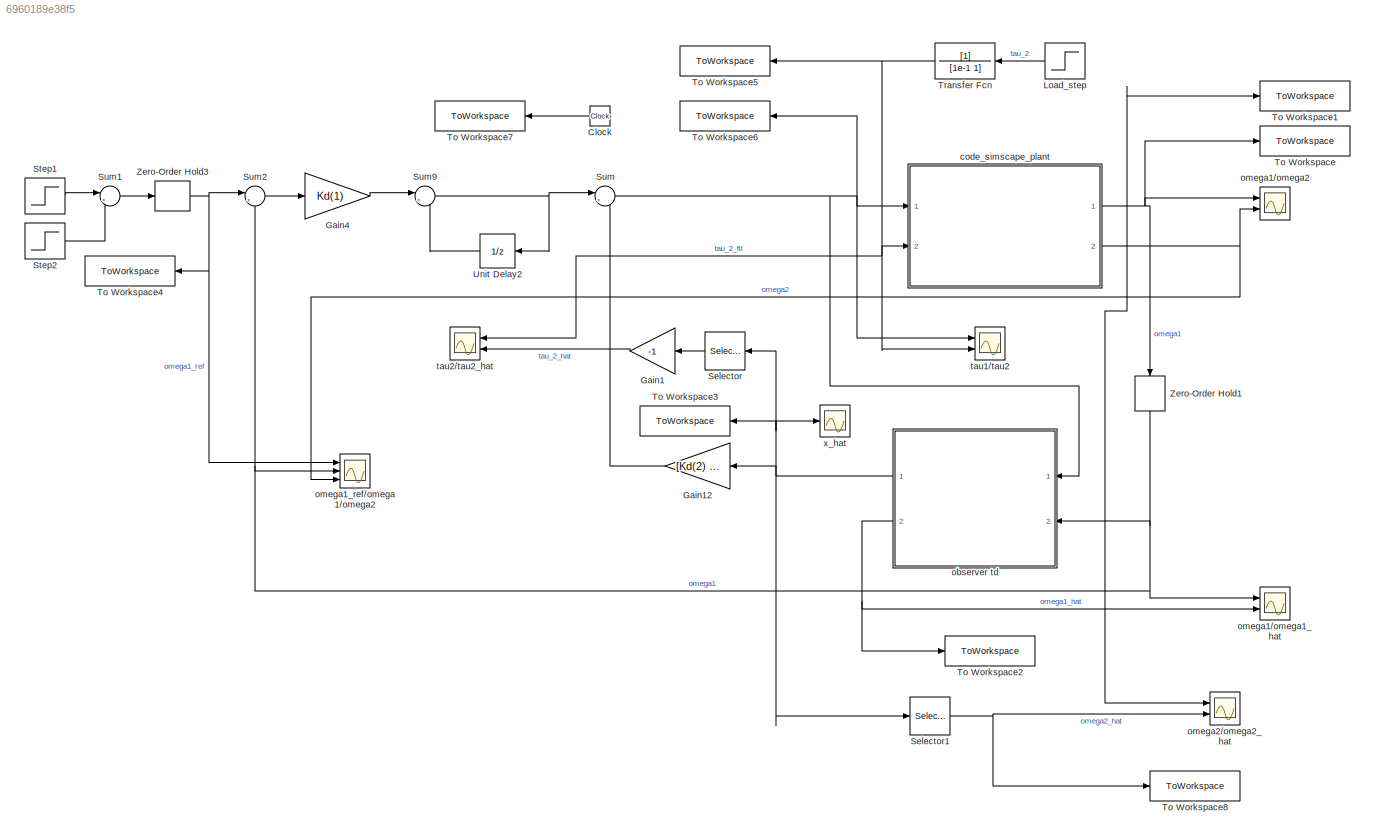
MODEL slx_6960189e38f5
KIND model
CONFIG AbsTol = auto
CONFIG EnableMultiTasking = off
CONFIG FixedStep = auto
CONFIG MaxStep = Tc
CONFIG MinStep = auto
CONFIG RelTol = Tc
CONFIG SampleTimeConstraint = Unconstrained
CONFIG SolverName = VariableStepAuto
CONFIG StartTime = 0.0
CONFIG StopTime = simlength
BLOCK [Clock] Clock
  NameLocation = top
BLOCK [Gain] Gain1
  Gain = -1
  NameLocation = top
BLOCK [Gain] Gain12
  Gain = [Kd(2) Kd(3) Kd(4) -1]
  Multiplication = Matrix(K*u)
BLOCK [Gain] Gain4
  Gain = Kd(1)
  NameLocation = top
BLOCK [Step] Load_step
  After = load_torque
  NameLocation = top
  SampleTime = 0
  Time = simlength/3
BLOCK [Selector] Selector
  IndexOptions = Index vector (dialog)
  Indices = 4
  InputPortWidth = 4
  NameLocation = top
  OutputSizes = 1
  Ports = [1, 1]
BLOCK [Selector] Selector1
  IndexOptions = Index vector (dialog)
  Indices = 2
  InputPortWidth = 4
  NameLocation = top
  OutputSizes = 1
  Ports = [1, 1]
BLOCK [Step] Step1
  SampleTime = 0
  Time = 0.2
BLOCK [Step] Step2
  SampleTime = 0
  Time = simlength/2
BLOCK [Sum] Sum
  Inputs = |+-
  Ports = [2, 1]
BLOCK [Sum] Sum1
  Inputs = |+-
  Ports = [2, 1]
BLOCK [Sum] Sum2
  Inputs = |+-
  Ports = [2, 1]
BLOCK [Sum] Sum9
  Inputs = |++
  Ports = [2, 1]
BLOCK [ToWorkspace] To Workspace
  FixptAsFi = on
  MaxDataPoints = Nc
  Ports = [1]
  SampleTime = Tc
  VariableName = omega1
BLOCK [ToWorkspace] To Workspace1
  FixptAsFi = on
  MaxDataPoints = Nc
  Ports = [1]
  SampleTime = Tc
  VariableName = omega2
BLOCK [ToWorkspace] To Workspace2
  FixptAsFi = on
  MaxDataPoints = Nc
  Ports = [1]
  SampleTime = Tc
  VariableName = omega1_hat
BLOCK [ToWorkspace] To Workspace3
  FixptAsFi = on
  MaxDataPoints = Nc
  NameLocation = top
  Ports = [1]
  SampleTime = Tc
  VariableName = x_hat
BLOCK [ToWorkspace] To Workspace4
  FixptAsFi = on
  MaxDataPoints = Nc
  NameLocation = top
  Ports = [1]
  SampleTime = Tc
  VariableName = omega1_ref
BLOCK [ToWorkspace] To Workspace5
  FixptAsFi = on
  MaxDataPoints = Nc
  NameLocation = top
  Ports = [1]
  SampleTime = Tc
  VariableName = tau_2
BLOCK [ToWorkspace] To Workspace6
  FixptAsFi = on
  MaxDataPoints = Nc
  NameLocation = top
  Ports = [1]
  SampleTime = Tc
  VariableName = tau_1
BLOCK [ToWorkspace] To Workspace7
  FixptAsFi = on
  MaxDataPoints = Nc
  NameLocation = top
  Ports = [1]
  SampleTime = Tc
  VariableName = t
BLOCK [ToWorkspace] To Workspace8
  FixptAsFi = on
  MaxDataPoints = Nc
  Ports = [1]
  SampleTime = Tc
  VariableName = omega2_hat
BLOCK [TransferFcn] Transfer Fcn
  Denominator = [1e-1 1]
BLOCK [UnitDelay] Unit Delay2
  HasFrameUpgradeWarning = on
  SampleTime = Ts
BLOCK [ZeroOrderHold] Zero-Order Hold1
  NameLocation = left
  SampleTime = Ts
BLOCK [ZeroOrderHold] Zero-Order Hold3
  SampleTime = Ts
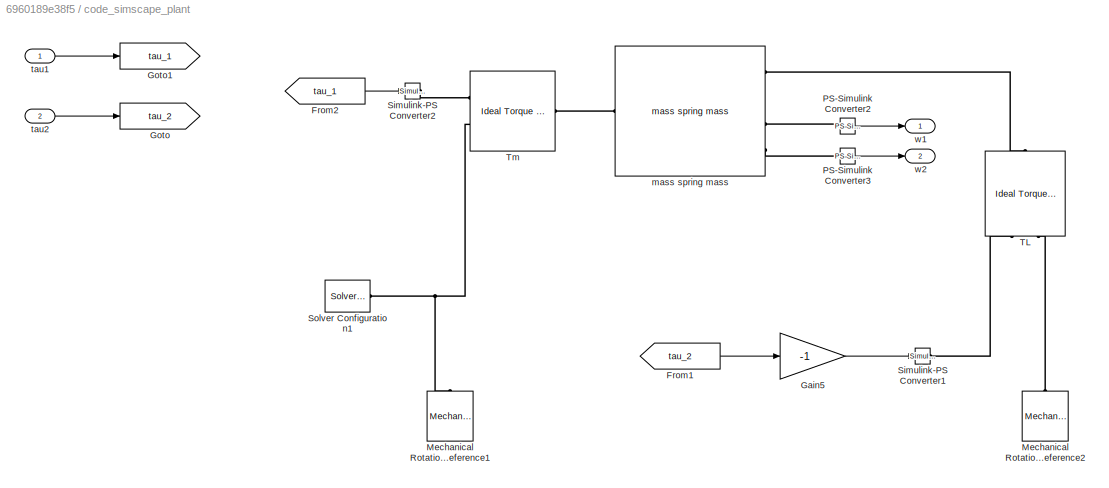
BLOCK [SubSystem] code_simscape_plant 
  Ports = [2, 2]
  RequestExecContextInheritance = off
BLOCK [From] code_simscape_plant /From1
  GotoTag = tau_2
BLOCK [From] code_simscape_plant /From2
  GotoTag = tau_1
BLOCK [Gain] code_simscape_plant /Gain5
  Gain = -1
  NameLocation = top
BLOCK [Goto] code_simscape_plant /Goto
  GotoTag = tau_2
BLOCK [Goto] code_simscape_plant /Goto1
  GotoTag = tau_1
BLOCK [Reference] code_simscape_plant /Mechanical Rotational Reference1  REF=fl_lib/Mechanical/Rotational Elements/Mechanical
Rotational Reference
  NameLocation = right
  Ports = [0, 0, 0, 0, 0, 1]
  SourceBlock = fl_lib/Mechanical/Rotational Elements/Mechanical\nRotational Reference
  SourceProductBaseCode = SS
  SourceType = Mechanical\nRotational Reference
BLOCK [Reference] code_simscape_plant /Mechanical Rotational Reference2  REF=fl_lib/Mechanical/Rotational Elements/Mechanical
Rotational Reference
  NameLocation = right
  Ports = [0, 0, 0, 0, 0, 1]
  SourceBlock = fl_lib/Mechanical/Rotational Elements/Mechanical\nRotational Reference
  SourceProductBaseCode = SS
  SourceType = Mechanical\nRotational Reference
BLOCK [Reference] code_simscape_plant /PS-Simulink Converter2  REF=nesl_utility/PS-Simulink
Converter
  Ports = [0, 1, 0, 0, 0, 1]
  SourceBlock = nesl_utility/PS-Simulink\nConverter
  SourceProductBaseCode = PW,SS
  SourceType = PS-Simulink\nConverter
BLOCK [Reference] code_simscape_plant /PS-Simulink Converter3  REF=nesl_utility/PS-Simulink
Converter
  NameLocation = top
  Ports = [0, 1, 0, 0, 0, 1]
  SourceBlock = nesl_utility/PS-Simulink\nConverter
  SourceProductBaseCode = PW,SS
  SourceType = PS-Simulink\nConverter
BLOCK [Reference] code_simscape_plant /Simulink-PS Converter1  REF=nesl_utility/Simulink-PS
Converter
  Ports = [1, 0, 0, 0, 0, 0, 1]
  SourceBlock = nesl_utility/Simulink-PS\nConverter
  SourceProductBaseCode = PW,SS
  SourceType = Simulink-PS\nConverter
BLOCK [Reference] code_simscape_plant /Simulink-PS Converter2  REF=nesl_utility/Simulink-PS
Converter
  Ports = [1, 0, 0, 0, 0, 0, 1]
  SourceBlock = nesl_utility/Simulink-PS\nConverter
  SourceProductBaseCode = PW,SS
  SourceType = Simulink-PS\nConverter
BLOCK [Reference] code_simscape_plant /Solver Configuration1  REF=nesl_utility/Solver
Configuration
  Ports = [0, 0, 0, 0, 0, 0, 1]
  SourceBlock = nesl_utility/Solver\nConfiguration
  SourceProductBaseCode = PW,SS
  SourceType = Solver\nConfiguration
BLOCK [Reference] code_simscape_plant /TL  REF=fl_lib/Mechanical/Mechanical Sources/Ideal Torque Source
  NameLocation = right
  Ports = [0, 0, 0, 0, 0, 1, 2]
  SourceBlock = fl_lib/Mechanical/Mechanical Sources/Ideal Torque Source
  SourceProductBaseCode = SS
  SourceType = Ideal Torque Source
BLOCK [Reference] code_simscape_plant /Tm   REF=fl_lib/Mechanical/Mechanical Sources/Ideal Torque Source
  Ports = [0, 0, 0, 0, 0, 1, 2]
  SourceBlock = fl_lib/Mechanical/Mechanical Sources/Ideal Torque Source
  SourceProductBaseCode = SS
  SourceType = Ideal Torque Source
BLOCK [Reference] code_simscape_plant /mass spring mass  REF=mass_spring_mass_lib/mass spring mass
  Ports = [0, 0, 0, 0, 0, 1, 4]
  SourceBlock = mass_spring_mass_lib/mass spring mass
  SourceType = mass spring mass
BLOCK [Inport] code_simscape_plant /tau1
BLOCK [Inport] code_simscape_plant /tau2
  Port = 2
BLOCK [Outport] code_simscape_plant /w1
BLOCK [Outport] code_simscape_plant /w2
  Port = 2
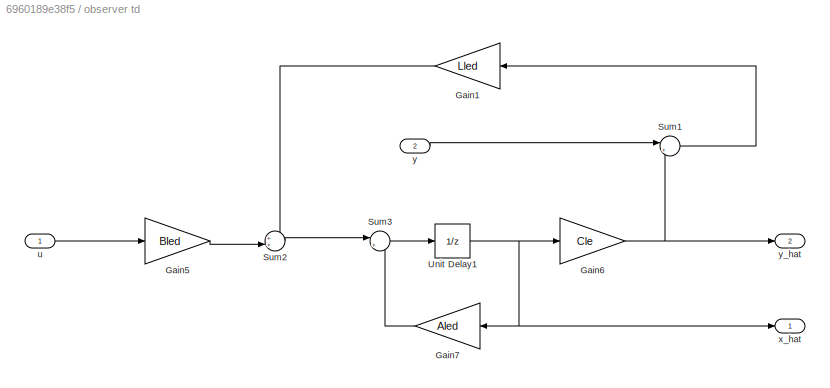
BLOCK [SubSystem] observer td
  NameLocation = top
  Ports = [2, 2]
  RequestExecContextInheritance = off
BLOCK [Gain] observer td/Gain1
  Gain = Lled
  Multiplication = Matrix(K*u)
  NameLocation = top
BLOCK [Gain] observer td/Gain5
  Gain = Bled
  Multiplication = Matrix(K*u)
BLOCK [Gain] observer td/Gain6
  Gain = Cle
  Multiplication = Matrix(K*u)
BLOCK [Gain] observer td/Gain7
  Gain = Aled
  Multiplication = Matrix(K*u)
BLOCK [Sum] observer td/Sum1
  Inputs = |+-
  Ports = [2, 1]
BLOCK [Sum] observer td/Sum2
  Inputs = ++|
  Ports = [2, 1]
BLOCK [Sum] observer td/Sum3
  Inputs = |++
  Ports = [2, 1]
BLOCK [UnitDelay] observer td/Unit Delay1
  HasFrameUpgradeWarning = on
  SampleTime = Ts
BLOCK [Inport] observer td/u
BLOCK [Outport] observer td/x_hat
BLOCK [Inport] observer td/y
  Port = 2
BLOCK [Outport] observer td/y_hat
  Port = 2
BLOCK [Scope] omega1//omega1_hat
  Floating = off
  NumInputPorts = 2
  Ports = [2]
  ScopeSpecificationString = Simulink.scopes.TimeScopeBlockCfg('CurrentConfiguration', extmgr.ConfigurationSet(extmgr.Configuration('Core','General UI',true),extmgr.Configuration('Core','Source UI',true),extmgr.Configuration('Sources','WiredSimulink',true,'DataLoggingVariableName','ScopeData2'),extmgr.Configuration('Visuals','Time Domain',true,'SerializedDisplays',{struct('MinYLimReal','-0.55805','MaxYLimReal','1.19498','YLab...<+1672ch>
BLOCK [Scope] omega1//omega2
  Floating = off
  NameLocation = right
  NumInputPorts = 2
  Ports = [2]
  ScopeSpecificationString = Simulink.scopes.TimeScopeBlockCfg('CurrentConfiguration', extmgr.ConfigurationSet(extmgr.Configuration('Core','General UI',true),extmgr.Configuration('Core','Source UI',true),extmgr.Configuration('Sources','WiredSimulink',true,'DataLoggingVariableName','ScopeData1'),extmgr.Configuration('Visuals','Time Domain',true,'SerializedDisplays',{struct('MinYLimReal','-0.30479','MaxYLimReal','1.32909','YLab...<+1696ch>
BLOCK [Scope] omega1_ref//omega1//omega2
  Floating = off
  NumInputPorts = 3
  Ports = [3]
  ScopeSpecificationString = Simulink.scopes.TimeScopeBlockCfg('CurrentConfiguration', extmgr.ConfigurationSet(extmgr.Configuration('Core','General UI',true),extmgr.Configuration('Core','Source UI',true),extmgr.Configuration('Sources','WiredSimulink',true,'DataLoggingVariableName','ScopeData1'),extmgr.Configuration('Visuals','Time Domain',true,'SerializedDisplays',{struct('MinYLimReal','-0.30619','MaxYLimReal','1.33523','YLab...<+1707ch>
BLOCK [Scope] omega2//omega2_hat
  Floating = off
  NumInputPorts = 2
  Ports = [2]
  ScopeSpecificationString = Simulink.scopes.TimeScopeBlockCfg('CurrentConfiguration', extmgr.ConfigurationSet(extmgr.Configuration('Core','General UI',true),extmgr.Configuration('Core','Source UI',true),extmgr.Configuration('Sources','WiredSimulink',true,'DataLoggingVariableName','ScopeData1'),extmgr.Configuration('Visuals','Time Domain',true,'SerializedDisplays',{struct('MinYLimReal','-0.29672','MaxYLimReal','1.29695','YLab...<+1701ch>
BLOCK [Scope] tau1//tau2
  Floating = off
  NumInputPorts = 2
  Ports = [2]
  ScopeSpecificationString = Simulink.scopes.TimeScopeBlockCfg('CurrentConfiguration', extmgr.ConfigurationSet(extmgr.Configuration('Core','General UI',true),extmgr.Configuration('Core','Source UI',true),extmgr.Configuration('Sources','WiredSimulink',true,'DataLoggingVariableName','ScopeData1'),extmgr.Configuration('Visuals','Time Domain',true,'SerializedDisplays',{struct('MinYLimReal','-113.85766','MaxYLimReal','123.5988','Y...<+1461ch>
BLOCK [Scope] tau2//tau2_hat
  Floating = off
  NameLocation = top
  NumInputPorts = 2
  Ports = [2]
  ScopeSpecificationString = Simulink.scopes.TimeScopeBlockCfg('CurrentConfiguration', extmgr.ConfigurationSet(extmgr.Configuration('Core','General UI',true),extmgr.Configuration('Core','Source UI',true),extmgr.Configuration('Sources','WiredSimulink',true,'DataLoggingVariableName','ScopeData1'),extmgr.Configuration('Visuals','Time Domain',true,'SerializedDisplays',{struct('MinYLimReal','-1.25','MaxYLimReal','11.25','YLabelRea...<+1689ch>
BLOCK [Scope] x_hat
  Floating = off
  NumInputPorts = 1
  Ports = [1]
  ScopeSpecificationString = Simulink.scopes.TimeScopeBlockCfg('CurrentConfiguration', extmgr.ConfigurationSet(extmgr.Configuration('Core','General UI',true),extmgr.Configuration('Core','Source UI',true),extmgr.Configuration('Sources','WiredSimulink',true,'DataLoggingVariableName','ScopeData2'),extmgr.Configuration('Visuals','Time Domain',true,'SerializedDisplays',{struct('MinYLimReal','-28.97057','MaxYLimReal','39.00403','YL...<+1603ch>
LINE Clock:1 -> To Workspace7:1
LINE Gain12:1 -> Sum:2
LINE Gain1:1 -> tau2//tau2_hat:2
LINE Gain4:1 -> Sum9:1
LINE Load_step:1 -> Transfer Fcn:1
NET Selector1:1 -> To Workspace8:1, omega2//omega2_hat:2
LINE Selector:1 -> Gain1:1
LINE Step1:1 -> Sum1:1
LINE Step2:1 -> Sum1:2
LINE Sum1:1 -> Zero-Order Hold3:1
LINE Sum2:1 -> Gain4:1
NET Sum9:1 -> Sum:1, Unit Delay2:1
NET Sum:1 -> To Workspace6:1, code_simscape_plant :1, observer td:1, tau1//tau2:1
NET Transfer Fcn:1 -> To Workspace5:1, code_simscape_plant :2, tau1//tau2:2, tau2//tau2_hat:1
LINE Unit Delay2:1 -> Sum9:2
NET Zero-Order Hold1:1 -> Sum2:2, observer td:2, omega1//omega1_hat:1, omega1_ref//omega1//omega2:2
NET Zero-Order Hold3:1 -> Sum2:1, To Workspace4:1, omega1_ref//omega1//omega2:1
LINE code_simscape_plant /From1:1 -> code_simscape_plant /Gain5:1
LINE code_simscape_plant /From2:1 -> code_simscape_plant /Simulink-PS Converter2:1
LINE code_simscape_plant /Gain5:1 -> code_simscape_plant /Simulink-PS Converter1:1
LINE code_simscape_plant /PS-Simulink Converter2:1 -> code_simscape_plant /w1:1
LINE code_simscape_plant /PS-Simulink Converter3:1 -> code_simscape_plant /w2:1
LINE code_simscape_plant /tau1:1 -> code_simscape_plant /Goto1:1
LINE code_simscape_plant /tau2:1 -> code_simscape_plant /Goto:1
NET code_simscape_plant :1 -> To Workspace:1, Zero-Order Hold1:1, omega1//omega2:1
NET code_simscape_plant :2 -> To Workspace1:1, omega1//omega2:2, omega1_ref//omega1//omega2:3, omega2//omega2_hat:1
LINE observer td/Gain1:1 -> observer td/Sum2:1
LINE observer td/Gain5:1 -> observer td/Sum2:2
NET observer td/Gain6:1 -> observer td/Sum1:2, observer td/y_hat:1
LINE observer td/Gain7:1 -> observer td/Sum3:2
LINE observer td/Sum1:1 -> observer td/Gain1:1
LINE observer td/Sum2:1 -> observer td/Sum3:1
LINE observer td/Sum3:1 -> observer td/Unit Delay1:1
NET observer td/Unit Delay1:1 -> observer td/Gain6:1, observer td/Gain7:1, observer td/x_hat:1
LINE observer td/u:1 -> observer td/Gain5:1
LINE observer td/y:1 -> observer td/Sum1:1
NET observer td:1 -> Gain12:1, Selector1:1, Selector:1, To Workspace3:1, x_hat:1
NET observer td:2 -> To Workspace2:1, omega1//omega1_hat:2
PNET net1: code_simscape_plant /Mechanical Rotational Reference1:LConn1 -- code_simscape_plant /Solver Configuration1:RConn1 -- code_simscape_plant /Tm :RConn2
PLINE code_simscape_plant /Mechanical Rotational Reference2:LConn1 -- code_simscape_plant /TL:RConn2
PLINE code_simscape_plant /PS-Simulink Converter2:LConn1 -- code_simscape_plant /mass spring mass:RConn3
PLINE code_simscape_plant /PS-Simulink Converter3:LConn1 -- code_simscape_plant /mass spring mass:RConn4
PLINE code_simscape_plant /Simulink-PS Converter1:RConn1 -- code_simscape_plant /TL:RConn1
PLINE code_simscape_plant /Simulink-PS Converter2:RConn1 -- code_simscape_plant /Tm :RConn1
PLINE code_simscape_plant /TL:LConn1 -- code_simscape_plant /mass spring mass:RConn1
PLINE code_simscape_plant /Tm :LConn1 -- code_simscape_plant /mass spring mass:LConn1
note: NET lines group one-source signal fan-out (src -> all destinations, sorted); 1:1 wires keep LINE; PNET lines group multi-terminal physical nets as a canonical sorted terminal list (undirected conserving connections); 2-terminal nets keep the pairwise PLINE form
